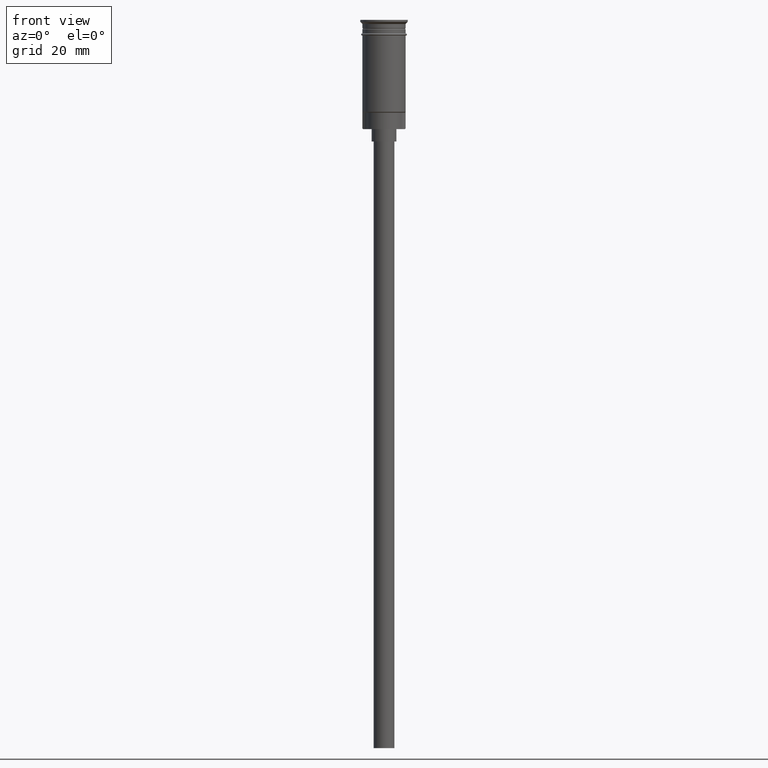
[diagram: clean part render]
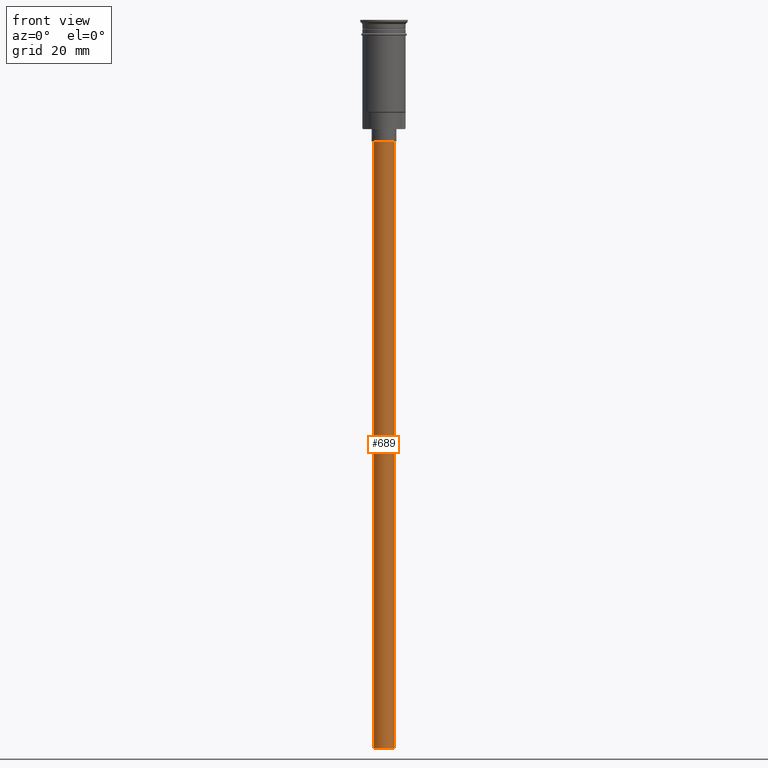
[diagram: same view with one face highlighted and labeled with its STEP entity id]
A machine part, front view. The second image highlights one B-rep face of the part: STEP entity #689.
In plain terms, the highlighted cylindrical surface (edge-blend (fillet) strip) has radius 2.5 mm, axis along (-0, -0, 1).
Its self-contained STEP definition (entity closure, byte-faithful):
#79 = VERTEX_POINT ( 'NONE', #132 ) ;
#124 = CARTESIAN_POINT ( 'NONE',  ( -2.500000000000000000, 3.061616997868383141E-16, -176.5000000000000000 ) ) ;
#132 = CARTESIAN_POINT ( 'NONE',  ( 2.500000000000000000, 0.000000000000000000, -29.50000000000000000 ) ) ;
#164 = AXIS2_PLACEMENT_3D ( 'NONE', #318, #478, #351 ) ;
#299 = DIRECTION ( 'NONE',  ( -0.000000000000000000, -0.000000000000000000, 1.000000000000000000 ) ) ;
#318 = CARTESIAN_POINT ( 'NONE',  ( 0.000000000000000000, 0.000000000000000000, -176.5000000000000000 ) ) ;
#351 = DIRECTION ( 'NONE',  ( -1.000000000000000000, 0.000000000000000000, 0.000000000000000000 ) ) ;
#409 = DIRECTION ( 'NONE',  ( -1.000000000000000000, 0.000000000000000000, 0.000000000000000000 ) ) ;
#412 = ORIENTED_EDGE ( 'NONE', *, *, #796, .T. ) ;
#439 = ORIENTED_EDGE ( 'NONE', *, *, #1345, .F. ) ;
#451 = CARTESIAN_POINT ( 'NONE',  ( 2.500000000000000000, 0.000000000000000000, -176.5000000000000000 ) ) ;
#472 = CARTESIAN_POINT ( 'NONE',  ( -2.500000000000000000, 3.061616997868383141E-16, -176.5000000000000000 ) ) ;
#478 = DIRECTION ( 'NONE',  ( 0.000000000000000000, 0.000000000000000000, -1.000000000000000000 ) ) ;
#485 = ORIENTED_EDGE ( 'NONE', *, *, #724, .T. ) ;
#506 = CARTESIAN_POINT ( 'NONE',  ( -2.500000000000000000, 3.061616997868383141E-16, -29.50000000000000000 ) ) ;
#555 = DIRECTION ( 'NONE',  ( 1.000000000000000000, 0.000000000000000000, 0.000000000000000000 ) ) ;
#639 = CYLINDRICAL_SURFACE ( 'NONE', #1414, 2.500000000000000000 ) ;
#657 = FACE_OUTER_BOUND ( 'NONE', #760, .T. ) ;
#675 = CIRCLE ( 'NONE', #164, 2.500000000000000000 ) ;
#689 = ADVANCED_FACE ( 'NONE', ( #657 ), #639, .T. ) ;
#702 = LINE ( 'NONE', #1079, #1281 ) ;
#724 = EDGE_CURVE ( 'NONE', #79, #1549, #1112, .T. ) ;
#743 = LINE ( 'NONE', #472, #810 ) ;
#760 = EDGE_LOOP ( 'NONE', ( #839, #439, #412, #485 ) ) ;
#796 = EDGE_CURVE ( 'NONE', #1263, #79, #702, .T. ) ;
#810 = VECTOR ( 'NONE', #989, 1000.000000000000000 ) ;
#839 = ORIENTED_EDGE ( 'NONE', *, *, #1445, .F. ) ;
#988 = VERTEX_POINT ( 'NONE', #124 ) ;
#989 = DIRECTION ( 'NONE',  ( -0.000000000000000000, -0.000000000000000000, 1.000000000000000000 ) ) ;
#1079 = CARTESIAN_POINT ( 'NONE',  ( 2.500000000000000000, 0.000000000000000000, -176.5000000000000000 ) ) ;
#1112 = CIRCLE ( 'NONE', #1539, 2.500000000000000000 ) ;
#1209 = DIRECTION ( 'NONE',  ( -0.000000000000000000, -0.000000000000000000, 1.000000000000000000 ) ) ;
#1263 = VERTEX_POINT ( 'NONE', #451 ) ;
#1276 = DIRECTION ( 'NONE',  ( 0.000000000000000000, 0.000000000000000000, -1.000000000000000000 ) ) ;
#1281 = VECTOR ( 'NONE', #1209, 1000.000000000000000 ) ;
#1345 = EDGE_CURVE ( 'NONE', #1263, #988, #675, .T. ) ;
#1404 = CARTESIAN_POINT ( 'NONE',  ( 0.000000000000000000, 0.000000000000000000, -176.5000000000000000 ) ) ;
#1414 = AXIS2_PLACEMENT_3D ( 'NONE', #1404, #299, #555 ) ;
#1445 = EDGE_CURVE ( 'NONE', #988, #1549, #743, .T. ) ;
#1539 = AXIS2_PLACEMENT_3D ( 'NONE', #1547, #1276, #409 ) ;
#1547 = CARTESIAN_POINT ( 'NONE',  ( 0.000000000000000000, 0.000000000000000000, -29.50000000000000000 ) ) ;
#1549 = VERTEX_POINT ( 'NONE', #506 ) ;